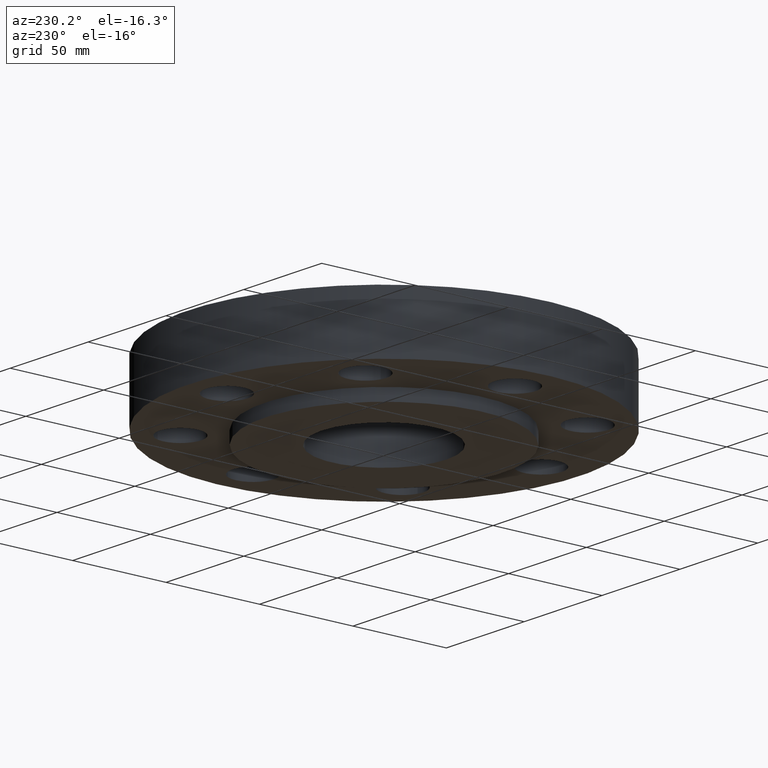
[diagram: clean part render]
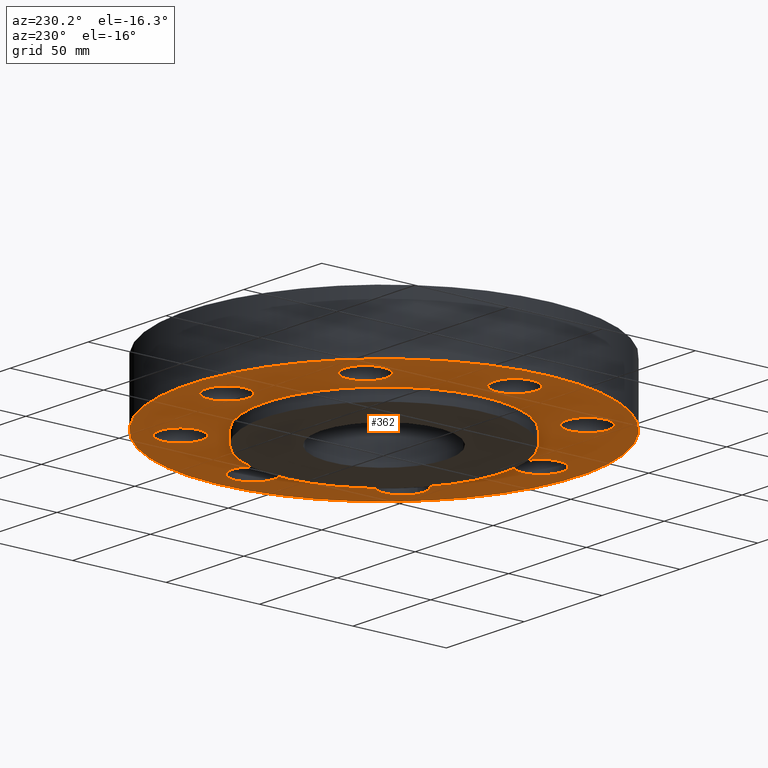
[diagram: same view with one face highlighted and labeled with its STEP entity id]
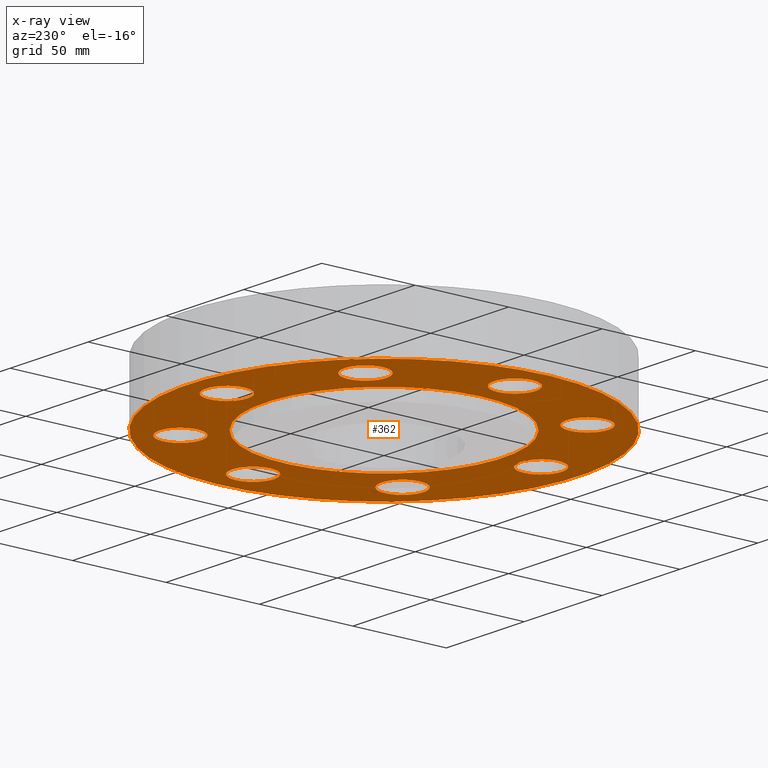
[diagram: x-ray of the same camera — body ghosted, the highlighted face saturated]
A machine part, auxiliary view. The second image highlights one B-rep face of the part: STEP entity #362.
The next image is the same camera in x-ray: the body ghosted, the highlighted face saturated — about 0% of this face is hidden behind the body in this view.
In plain terms, the highlighted planar face has unit normal (0, 0, -1).
Its self-contained STEP definition (entity closure, byte-faithful):
#162=AXIS2_PLACEMENT_3D('Circle Axis2P3D',#160,#161,$) ;
#181=AXIS2_PLACEMENT_3D('Circle Axis2P3D',#179,#180,$) ;
#194=AXIS2_PLACEMENT_3D('Plane Axis2P3D',#191,#192,#193) ;
#198=AXIS2_PLACEMENT_3D('Circle Axis2P3D',#196,#197,$) ;
#207=AXIS2_PLACEMENT_3D('Circle Axis2P3D',#205,#206,$) ;
#216=AXIS2_PLACEMENT_3D('Circle Axis2P3D',#214,#215,$) ;
#225=AXIS2_PLACEMENT_3D('Circle Axis2P3D',#223,#224,$) ;
#238=AXIS2_PLACEMENT_3D('Circle Axis2P3D',#236,#237,$) ;
#247=AXIS2_PLACEMENT_3D('Circle Axis2P3D',#245,#246,$) ;
#256=AXIS2_PLACEMENT_3D('Circle Axis2P3D',#254,#255,$) ;
#265=AXIS2_PLACEMENT_3D('Circle Axis2P3D',#263,#264,$) ;
#274=AXIS2_PLACEMENT_3D('Circle Axis2P3D',#272,#273,$) ;
#283=AXIS2_PLACEMENT_3D('Circle Axis2P3D',#281,#282,$) ;
#292=AXIS2_PLACEMENT_3D('Circle Axis2P3D',#290,#291,$) ;
#301=AXIS2_PLACEMENT_3D('Circle Axis2P3D',#299,#300,$) ;
#310=AXIS2_PLACEMENT_3D('Circle Axis2P3D',#308,#309,$) ;
#319=AXIS2_PLACEMENT_3D('Circle Axis2P3D',#317,#318,$) ;
#328=AXIS2_PLACEMENT_3D('Circle Axis2P3D',#326,#327,$) ;
#337=AXIS2_PLACEMENT_3D('Circle Axis2P3D',#335,#336,$) ;
#346=AXIS2_PLACEMENT_3D('Circle Axis2P3D',#344,#345,$) ;
#355=AXIS2_PLACEMENT_3D('Circle Axis2P3D',#353,#354,$) ;
#157=CARTESIAN_POINT('Vertex',(-1.19856384652,-2.19395640473,2.79741234551E-016)) ;
#160=CARTESIAN_POINT('Axis2P3D Location',(0.,0.,4.19611851827E-016)) ;
#164=CARTESIAN_POINT('Vertex',(1.19856384652,2.19395640473,2.79741234551E-016)) ;
#179=CARTESIAN_POINT('Axis2P3D Location',(0.,0.,4.19611851827E-016)) ;
#191=CARTESIAN_POINT('Axis2P3D Location',(0.,2.50000000001,0.)) ;
#196=CARTESIAN_POINT('Axis2P3D Location',(0.,0.,0.)) ;
#200=CARTESIAN_POINT('Vertex',(-1.97763034675,-3.62002806781,6.99353086378E-016)) ;
#202=CARTESIAN_POINT('Vertex',(1.97763034675,3.62002806781,6.99353086378E-016)) ;
#205=CARTESIAN_POINT('Axis2P3D Location',(0.,0.,0.)) ;
#214=CARTESIAN_POINT('Axis2P3D Location',(3.31000000001,0.,0.)) ;
#218=CARTESIAN_POINT('Vertex',(3.69613632725,-0.210947236987,0.)) ;
#220=CARTESIAN_POINT('Vertex',(2.92386367278,0.210947236987,0.)) ;
#223=CARTESIAN_POINT('Axis2P3D Location',(3.31000000001,0.,0.)) ;
#236=CARTESIAN_POINT('Axis2P3D Location',(2.34052344574,-2.34052344574,0.)) ;
#240=CARTESIAN_POINT('Vertex',(2.21664605203,-1.91832160854,0.)) ;
#242=CARTESIAN_POINT('Vertex',(2.46440083944,-2.76272528293,0.)) ;
#245=CARTESIAN_POINT('Axis2P3D Location',(2.34052344574,-2.34052344574,0.)) ;
#254=CARTESIAN_POINT('Axis2P3D Location',(-4.54579506146E-016,-3.31000000001,0.)) ;
#258=CARTESIAN_POINT('Vertex',(0.210947236987,-2.92386367278,0.)) ;
#260=CARTESIAN_POINT('Vertex',(-0.210947236987,-3.69613632725,0.)) ;
#263=CARTESIAN_POINT('Axis2P3D Location',(-5.24514814784E-016,-3.31000000001,0.)) ;
#272=CARTESIAN_POINT('Axis2P3D Location',(-2.34052344574,-2.34052344574,0.)) ;
#276=CARTESIAN_POINT('Vertex',(-1.91832160854,-2.21664605203,0.)) ;
#278=CARTESIAN_POINT('Vertex',(-2.76272528293,-2.46440083944,0.)) ;
#281=CARTESIAN_POINT('Axis2P3D Location',(-2.34052344574,-2.34052344574,0.)) ;
#290=CARTESIAN_POINT('Axis2P3D Location',(-3.31000000001,-8.39223703654E-016,0.)) ;
#294=CARTESIAN_POINT('Vertex',(-2.92386367278,-0.210947236987,0.)) ;
#296=CARTESIAN_POINT('Vertex',(-3.69613632725,0.210947236987,0.)) ;
#299=CARTESIAN_POINT('Axis2P3D Location',(-3.31000000001,-2.79741234551E-016,0.)) ;
#308=CARTESIAN_POINT('Axis2P3D Location',(-2.34052344574,2.34052344574,0.)) ;
#312=CARTESIAN_POINT('Vertex',(-2.21664605203,1.91832160854,0.)) ;
#314=CARTESIAN_POINT('Vertex',(-2.46440083944,2.76272528293,0.)) ;
#317=CARTESIAN_POINT('Axis2P3D Location',(-2.34052344574,2.34052344574,0.)) ;
#326=CARTESIAN_POINT('Axis2P3D Location',(-6.2941777774E-016,3.31000000001,0.)) ;
#330=CARTESIAN_POINT('Vertex',(-0.210947236987,2.92386367278,0.)) ;
#332=CARTESIAN_POINT('Vertex',(0.210947236987,3.69613632725,0.)) ;
#335=CARTESIAN_POINT('Axis2P3D Location',(-7.34320740697E-016,3.31000000001,0.)) ;
#344=CARTESIAN_POINT('Axis2P3D Location',(2.34052344574,2.34052344574,0.)) ;
#348=CARTESIAN_POINT('Vertex',(1.91832160854,2.21664605203,0.)) ;
#350=CARTESIAN_POINT('Vertex',(2.76272528293,2.46440083944,0.)) ;
#353=CARTESIAN_POINT('Axis2P3D Location',(2.34052344574,2.34052344574,0.)) ;
#161=DIRECTION('Axis2P3D Direction',(0.,0.,-0.0393700787402)) ;
#180=DIRECTION('Axis2P3D Direction',(0.,0.,-0.0393700787402)) ;
#192=DIRECTION('Axis2P3D Direction',(0.,0.,-0.0393700787402)) ;
#193=DIRECTION('Axis2P3D XDirection',(0.0393700787402,0.,0.)) ;
#197=DIRECTION('Axis2P3D Direction',(0.,0.,-0.0393700787402)) ;
#206=DIRECTION('Axis2P3D Direction',(0.,0.,-0.0393700787402)) ;
#215=DIRECTION('Axis2P3D Direction',(0.,0.,-0.0393700787402)) ;
#224=DIRECTION('Axis2P3D Direction',(0.,0.,-0.0393700787402)) ;
#237=DIRECTION('Axis2P3D Direction',(0.,0.,-0.0393700787402)) ;
#246=DIRECTION('Axis2P3D Direction',(0.,0.,-0.0393700787402)) ;
#255=DIRECTION('Axis2P3D Direction',(0.,0.,-0.0393700787402)) ;
#264=DIRECTION('Axis2P3D Direction',(0.,0.,-0.0393700787402)) ;
#273=DIRECTION('Axis2P3D Direction',(0.,0.,-0.0393700787402)) ;
#282=DIRECTION('Axis2P3D Direction',(0.,0.,-0.0393700787402)) ;
#291=DIRECTION('Axis2P3D Direction',(0.,0.,-0.0393700787402)) ;
#300=DIRECTION('Axis2P3D Direction',(0.,0.,-0.0393700787402)) ;
#309=DIRECTION('Axis2P3D Direction',(0.,0.,-0.0393700787402)) ;
#318=DIRECTION('Axis2P3D Direction',(0.,0.,-0.0393700787402)) ;
#327=DIRECTION('Axis2P3D Direction',(0.,0.,-0.0393700787402)) ;
#336=DIRECTION('Axis2P3D Direction',(0.,0.,-0.0393700787402)) ;
#345=DIRECTION('Axis2P3D Direction',(0.,0.,-0.0393700787402)) ;
#354=DIRECTION('Axis2P3D Direction',(0.,0.,-0.0393700787402)) ;
#211=ORIENTED_EDGE('',*,*,#204,.T.) ;
#212=ORIENTED_EDGE('',*,*,#209,.T.) ;
#229=ORIENTED_EDGE('',*,*,#222,.F.) ;
#230=ORIENTED_EDGE('',*,*,#227,.F.) ;
#233=ORIENTED_EDGE('',*,*,#183,.F.) ;
#234=ORIENTED_EDGE('',*,*,#166,.F.) ;
#251=ORIENTED_EDGE('',*,*,#244,.F.) ;
#252=ORIENTED_EDGE('',*,*,#249,.F.) ;
#269=ORIENTED_EDGE('',*,*,#262,.F.) ;
#270=ORIENTED_EDGE('',*,*,#267,.F.) ;
#287=ORIENTED_EDGE('',*,*,#280,.F.) ;
#288=ORIENTED_EDGE('',*,*,#285,.F.) ;
#305=ORIENTED_EDGE('',*,*,#298,.F.) ;
#306=ORIENTED_EDGE('',*,*,#303,.F.) ;
#323=ORIENTED_EDGE('',*,*,#316,.F.) ;
#324=ORIENTED_EDGE('',*,*,#321,.F.) ;
#341=ORIENTED_EDGE('',*,*,#334,.F.) ;
#342=ORIENTED_EDGE('',*,*,#339,.F.) ;
#359=ORIENTED_EDGE('',*,*,#352,.F.) ;
#360=ORIENTED_EDGE('',*,*,#357,.F.) ;
#231=FACE_BOUND('',#228,.T.) ;
#235=FACE_BOUND('',#232,.T.) ;
#253=FACE_BOUND('',#250,.T.) ;
#271=FACE_BOUND('',#268,.T.) ;
#289=FACE_BOUND('',#286,.T.) ;
#307=FACE_BOUND('',#304,.T.) ;
#325=FACE_BOUND('',#322,.T.) ;
#343=FACE_BOUND('',#340,.T.) ;
#361=FACE_BOUND('',#358,.T.) ;
#362=ADVANCED_FACE('PartBody',(#213,#231,#235,#253,#271,#289,#307,#325,#343,#361),#195,.T.) ;
#163=CIRCLE('generated circle',#162,2.50000000001) ;
#182=CIRCLE('generated circle',#181,2.50000000001) ;
#199=CIRCLE('generated circle',#198,4.12500000002) ;
#208=CIRCLE('generated circle',#207,4.12500000002) ;
#217=CIRCLE('generated circle',#216,0.440000000002) ;
#226=CIRCLE('generated circle',#225,0.440000000002) ;
#239=CIRCLE('generated circle',#238,0.440000000002) ;
#248=CIRCLE('generated circle',#247,0.440000000002) ;
#257=CIRCLE('generated circle',#256,0.440000000002) ;
#266=CIRCLE('generated circle',#265,0.440000000002) ;
#275=CIRCLE('generated circle',#274,0.440000000002) ;
#284=CIRCLE('generated circle',#283,0.440000000002) ;
#293=CIRCLE('generated circle',#292,0.440000000002) ;
#302=CIRCLE('generated circle',#301,0.440000000002) ;
#311=CIRCLE('generated circle',#310,0.440000000002) ;
#320=CIRCLE('generated circle',#319,0.440000000002) ;
#329=CIRCLE('generated circle',#328,0.440000000002) ;
#338=CIRCLE('generated circle',#337,0.440000000002) ;
#347=CIRCLE('generated circle',#346,0.440000000002) ;
#356=CIRCLE('generated circle',#355,0.440000000002) ;
#166=EDGE_CURVE('',#158,#165,#163,.T.) ;
#183=EDGE_CURVE('',#165,#158,#182,.T.) ;
#204=EDGE_CURVE('',#201,#203,#199,.T.) ;
#209=EDGE_CURVE('',#203,#201,#208,.T.) ;
#222=EDGE_CURVE('',#219,#221,#217,.T.) ;
#227=EDGE_CURVE('',#221,#219,#226,.T.) ;
#244=EDGE_CURVE('',#241,#243,#239,.T.) ;
#249=EDGE_CURVE('',#243,#241,#248,.T.) ;
#262=EDGE_CURVE('',#259,#261,#257,.T.) ;
#267=EDGE_CURVE('',#261,#259,#266,.T.) ;
#280=EDGE_CURVE('',#277,#279,#275,.T.) ;
#285=EDGE_CURVE('',#279,#277,#284,.T.) ;
#298=EDGE_CURVE('',#295,#297,#293,.T.) ;
#303=EDGE_CURVE('',#297,#295,#302,.T.) ;
#316=EDGE_CURVE('',#313,#315,#311,.T.) ;
#321=EDGE_CURVE('',#315,#313,#320,.T.) ;
#334=EDGE_CURVE('',#331,#333,#329,.T.) ;
#339=EDGE_CURVE('',#333,#331,#338,.T.) ;
#352=EDGE_CURVE('',#349,#351,#347,.T.) ;
#357=EDGE_CURVE('',#351,#349,#356,.T.) ;
#210=EDGE_LOOP('',(#211,#212)) ;
#228=EDGE_LOOP('',(#229,#230)) ;
#232=EDGE_LOOP('',(#233,#234)) ;
#250=EDGE_LOOP('',(#251,#252)) ;
#268=EDGE_LOOP('',(#269,#270)) ;
#286=EDGE_LOOP('',(#287,#288)) ;
#304=EDGE_LOOP('',(#305,#306)) ;
#322=EDGE_LOOP('',(#323,#324)) ;
#340=EDGE_LOOP('',(#341,#342)) ;
#358=EDGE_LOOP('',(#359,#360)) ;
#213=FACE_OUTER_BOUND('',#210,.T.) ;
#195=PLANE('',#194) ;
#158=VERTEX_POINT('',#157) ;
#165=VERTEX_POINT('',#164) ;
#201=VERTEX_POINT('',#200) ;
#203=VERTEX_POINT('',#202) ;
#219=VERTEX_POINT('',#218) ;
#221=VERTEX_POINT('',#220) ;
#241=VERTEX_POINT('',#240) ;
#243=VERTEX_POINT('',#242) ;
#259=VERTEX_POINT('',#258) ;
#261=VERTEX_POINT('',#260) ;
#277=VERTEX_POINT('',#276) ;
#279=VERTEX_POINT('',#278) ;
#295=VERTEX_POINT('',#294) ;
#297=VERTEX_POINT('',#296) ;
#313=VERTEX_POINT('',#312) ;
#315=VERTEX_POINT('',#314) ;
#331=VERTEX_POINT('',#330) ;
#333=VERTEX_POINT('',#332) ;
#349=VERTEX_POINT('',#348) ;
#351=VERTEX_POINT('',#350) ;